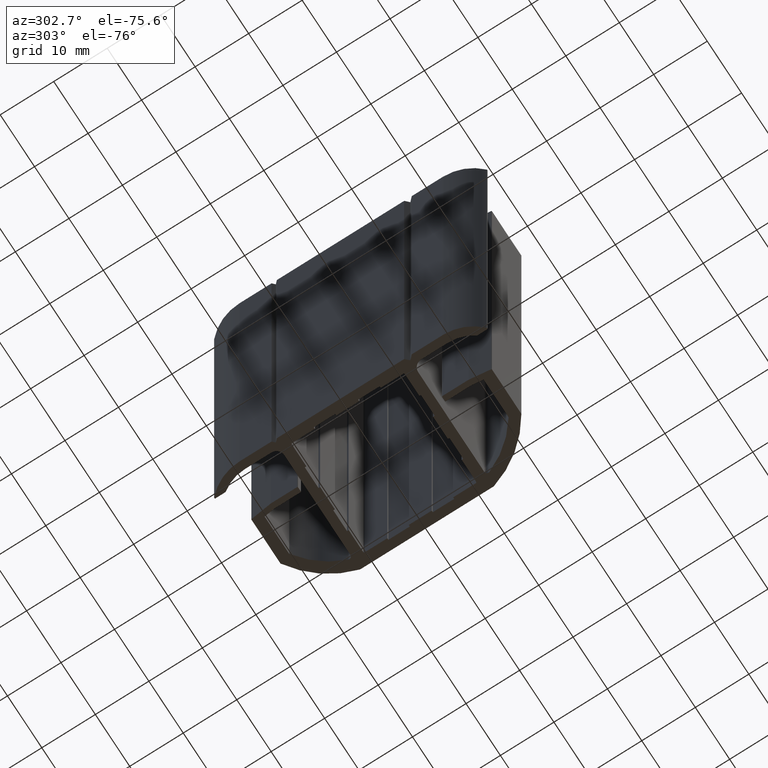
[diagram: clean part render]
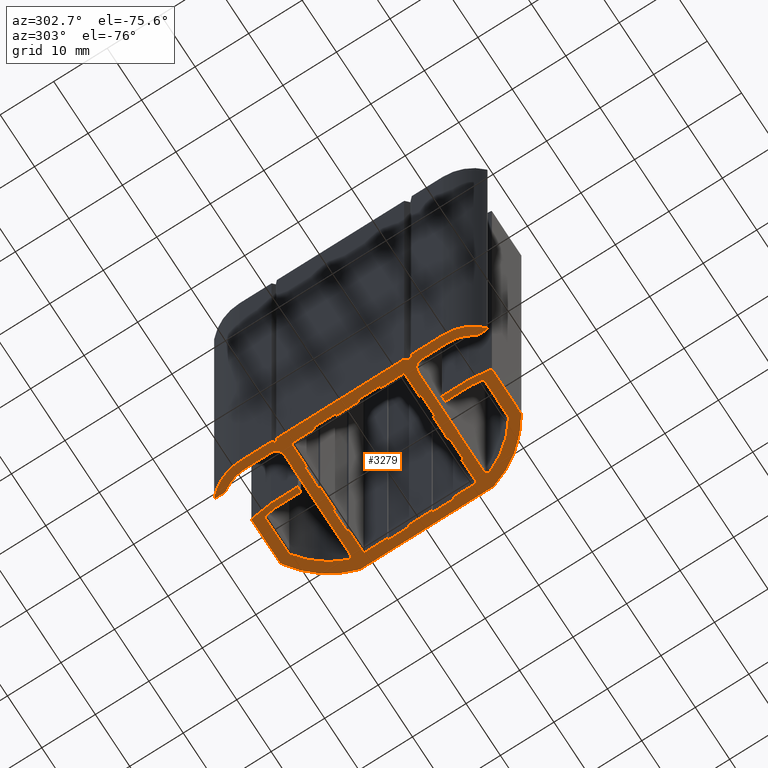
[diagram: same view with one face highlighted and labeled with its STEP entity id]
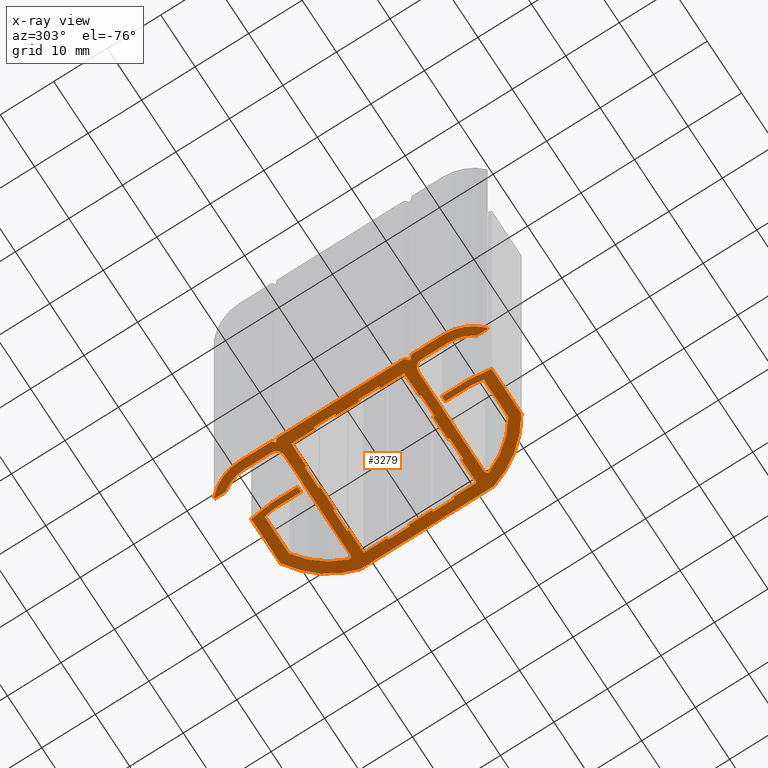
[diagram: x-ray of the same camera — body ghosted, the highlighted face saturated]
A machine part, auxiliary view. The second image highlights one B-rep face of the part: STEP entity #3279.
The next image is the same camera in x-ray: the body ghosted, the highlighted face saturated — about 0% of this face is hidden behind the body in this view.
In plain terms, the highlighted planar face has unit normal (0, 0, 1).
Its self-contained STEP definition (entity closure, byte-faithful):
#7=CARTESIAN_POINT('',(15.508481817630354,-22.484562779926733,-100.0));
#8=VERTEX_POINT('',#7);
#9=CARTESIAN_POINT('',(23.049999999999955,-12.500000000000284,-100.0));
#10=VERTEX_POINT('',#9);
#11=CARTESIAN_POINT('',(6.049999999999955,-7.500000000000284,-100.0));
#12=DIRECTION('',(0.0,0.0,1.0));
#13=DIRECTION('',(1.0,0.0,0.0));
#14=AXIS2_PLACEMENT_3D('',#11,#12,#13);
#15=CIRCLE('',#14,17.720045146669349);
#16=EDGE_CURVE('',#8,#10,#15,.T.);
#49=CARTESIAN_POINT('',(23.049999999999955,12.499999999999545,-100.0));
#50=VERTEX_POINT('',#49);
#51=CARTESIAN_POINT('',(23.049999999999955,-12.500000000000284,-100.0));
#52=DIRECTION('',(0.0,1.0,0.0));
#53=VECTOR('',#52,25.000000000000085);
#54=LINE('',#51,#53);
#55=EDGE_CURVE('',#10,#50,#54,.T.);
#80=CARTESIAN_POINT('',(15.508481817630354,22.484562779924460,-100.0));
#81=VERTEX_POINT('',#80);
#82=CARTESIAN_POINT('',(6.049999999999955,7.499999999999801,-100.0));
#83=DIRECTION('',(0.0,0.0,1.0));
#84=DIRECTION('',(1.0,0.0,0.0));
#85=AXIS2_PLACEMENT_3D('',#82,#83,#84);
#86=CIRCLE('',#85,17.720045146669349);
#87=EDGE_CURVE('',#50,#81,#86,.T.);
#113=CARTESIAN_POINT('',(15.455104516729989,22.499999999999801,-100.0));
#114=VERTEX_POINT('',#113);
#115=CARTESIAN_POINT('',(15.455104516729989,22.399999999999807,-100.0));
#116=DIRECTION('',(0.0,0.0,1.0));
#117=DIRECTION('',(1.0,0.0,0.0));
#118=AXIS2_PLACEMENT_3D('',#115,#116,#117);
#119=CIRCLE('',#118,0.100000000000000);
#120=EDGE_CURVE('',#81,#114,#119,.T.);
#146=CARTESIAN_POINT('',(7.038278221853943,22.499999999999801,-100.0));
#147=VERTEX_POINT('',#146);
#148=CARTESIAN_POINT('',(15.455104516729989,22.499999999999801,-100.0));
#149=DIRECTION('',(-1.0,0.0,0.0));
#150=VECTOR('',#149,8.416826294876046);
#151=LINE('',#148,#150);
#152=EDGE_CURVE('',#114,#147,#151,.T.);
#177=CARTESIAN_POINT('',(6.939050434181809,22.412403473458710,-100.0));
#178=VERTEX_POINT('',#177);
#179=CARTESIAN_POINT('',(7.038278221853943,22.399999999999807,-100.0));
#180=DIRECTION('',(0.0,0.0,1.0));
#181=DIRECTION('',(1.0,0.0,0.0));
#182=AXIS2_PLACEMENT_3D('',#179,#180,#181);
#183=CIRCLE('',#182,0.100000000000000);
#184=EDGE_CURVE('',#147,#178,#183,.T.);
#210=CARTESIAN_POINT('',(6.449999999999818,18.500000000000909,-100.0));
#211=VERTEX_POINT('',#210);
#212=CARTESIAN_POINT('',(6.939050434181809,22.412403473458710,-100.0));
#213=DIRECTION('',(-0.124034734589150,-0.992277876713675,0.0));
#214=VECTOR('',#213,3.942850652294385);
#215=LINE('',#212,#214);
#216=EDGE_CURVE('',#178,#211,#215,.T.);
#241=CARTESIAN_POINT('',(6.450000000000955,13.599999999999795,-100.0));
#242=VERTEX_POINT('',#241);
#243=CARTESIAN_POINT('',(6.449999999999818,18.500000000000909,-100.0));
#244=DIRECTION('',(0.0,-1.0,0.0));
#245=VECTOR('',#244,4.900000000001114);
#246=LINE('',#243,#245);
#247=EDGE_CURVE('',#211,#242,#246,.T.);
#272=CARTESIAN_POINT('',(6.550000000000864,13.499999999999801,-100.0));
#273=VERTEX_POINT('',#272);
#274=CARTESIAN_POINT('',(6.550000000000864,13.599999999999795,-100.0));
#275=DIRECTION('',(0.0,0.0,1.0));
#276=DIRECTION('',(1.0,0.0,0.0));
#277=AXIS2_PLACEMENT_3D('',#274,#275,#276);
#278=CIRCLE('',#277,0.100000000000000);
#279=EDGE_CURVE('',#242,#273,#278,.T.);
#305=CARTESIAN_POINT('',(7.349999999999909,13.499999999999801,-100.0));
#306=VERTEX_POINT('',#305);
#307=CARTESIAN_POINT('',(6.550000000000864,13.499999999999801,-100.0));
#308=DIRECTION('',(1.0,0.0,0.0));
#309=VECTOR('',#308,0.799999999999045);
#310=LINE('',#307,#309);
#311=EDGE_CURVE('',#273,#306,#310,.T.);
#336=CARTESIAN_POINT('',(7.449999999999818,13.599999999999795,-100.0));
#337=VERTEX_POINT('',#336);
#338=CARTESIAN_POINT('',(7.349999999999909,13.599999999999795,-100.0));
#339=DIRECTION('',(0.0,0.0,1.0));
#340=DIRECTION('',(1.0,0.0,0.0));
#341=AXIS2_PLACEMENT_3D('',#338,#339,#340);
#342=CIRCLE('',#341,0.100000000000000);
#343=EDGE_CURVE('',#306,#337,#342,.T.);
#369=CARTESIAN_POINT('',(7.449999999999818,18.437742251701508,-100.0));
#370=VERTEX_POINT('',#369);
#371=CARTESIAN_POINT('',(7.449999999999818,13.599999999999795,-100.0));
#372=DIRECTION('',(0.0,1.0,0.0));
#373=VECTOR('',#372,4.837742251701712);
#374=LINE('',#371,#373);
#375=EDGE_CURVE('',#337,#370,#374,.T.);
#400=CARTESIAN_POINT('',(7.696832652719422,20.412403473458738,-100.0));
#401=VERTEX_POINT('',#400);
#402=CARTESIAN_POINT('',(7.449999999999818,18.437742251701508,-100.0));
#403=DIRECTION('',(0.124034734589411,0.992277876713642,0.0));
#404=VECTOR('',#403,1.990028466922136);
#405=LINE('',#402,#404);
#406=EDGE_CURVE('',#370,#401,#405,.T.);
#431=CARTESIAN_POINT('',(7.796060440390875,20.499999999999801,-100.0));
#432=VERTEX_POINT('',#431);
#433=CARTESIAN_POINT('',(7.796060440390875,20.399999999999807,-100.0));
#434=DIRECTION('',(0.0,0.0,-1.0));
#435=DIRECTION('',(1.0,0.0,0.0));
#436=AXIS2_PLACEMENT_3D('',#433,#434,#435);
#437=CIRCLE('',#436,0.100000000000000);
#438=EDGE_CURVE('',#401,#432,#437,.T.);
#464=CARTESIAN_POINT('',(14.857713118854008,20.499999999999801,-100.0));
#465=VERTEX_POINT('',#464);
#466=CARTESIAN_POINT('',(7.796060440390875,20.499999999999801,-100.0));
#467=DIRECTION('',(1.0,0.0,0.0));
#468=VECTOR('',#467,7.061652678463133);
#469=LINE('',#466,#468);
#470=EDGE_CURVE('',#432,#465,#469,.T.);
#495=CARTESIAN_POINT('',(14.914100363809666,20.482586188954230,-100.0));
#496=VERTEX_POINT('',#495);
#497=CARTESIAN_POINT('',(14.857713118854008,20.399999999999807,-100.0));
#498=DIRECTION('',(0.0,0.0,-1.0));
#499=DIRECTION('',(1.0,0.0,0.0));
#500=AXIS2_PLACEMENT_3D('',#497,#498,#499);
#501=CIRCLE('',#500,0.100000000000000);
#502=EDGE_CURVE('',#465,#496,#501,.T.);
#528=CARTESIAN_POINT('',(20.707750939953030,13.180682775477777,-100.0));
#529=VERTEX_POINT('',#528);
#530=CARTESIAN_POINT('',(6.049999999999955,7.499999999999801,-100.0));
#531=DIRECTION('',(0.0,0.0,-1.0));
#532=DIRECTION('',(1.0,0.0,0.0));
#533=AXIS2_PLACEMENT_3D('',#530,#531,#532);
#534=CIRCLE('',#533,15.720045146669349);
#535=EDGE_CURVE('',#496,#529,#534,.T.);
#561=CARTESIAN_POINT('',(20.241538826590840,12.499999999999801,-100.0));
#562=VERTEX_POINT('',#561);
#563=CARTESIAN_POINT('',(20.241538826590840,12.999999999999801,-100.0));
#564=DIRECTION('',(0.0,0.0,-1.0));
#565=DIRECTION('',(1.0,0.0,0.0));
#566=AXIS2_PLACEMENT_3D('',#563,#564,#565);
#567=CIRCLE('',#566,0.500000000000000);
#568=EDGE_CURVE('',#529,#562,#567,.T.);
#594=CARTESIAN_POINT('',(1.049999999999955,12.499999999999716,-100.0));
#595=VERTEX_POINT('',#594);
#596=CARTESIAN_POINT('',(20.241538826590840,12.499999999999801,-100.0));
#597=DIRECTION('',(-1.0,0.0,0.0));
#598=VECTOR('',#597,19.191538826590886);
#599=LINE('',#596,#598);
#600=EDGE_CURVE('',#562,#595,#599,.T.);
#625=CARTESIAN_POINT('',(-0.450000000000045,13.999999999999716,-100.0));
#626=VERTEX_POINT('',#625);
#627=CARTESIAN_POINT('',(1.049999999999955,13.999999999999716,-100.0));
#628=DIRECTION('',(0.0,0.0,-1.0));
#629=DIRECTION('',(1.0,0.0,0.0));
#630=AXIS2_PLACEMENT_3D('',#627,#628,#629);
#631=CIRCLE('',#630,1.500000000000000);
#632=EDGE_CURVE('',#595,#626,#631,.T.);
#658=CARTESIAN_POINT('',(-0.450000000000045,18.999999999999801,-100.0));
#659=VERTEX_POINT('',#658);
#660=CARTESIAN_POINT('',(-0.450000000000045,13.999999999999716,-100.0));
#661=DIRECTION('',(0.0,1.0,0.0));
#662=VECTOR('',#661,5.000000000000085);
#663=LINE('',#660,#662);
#664=EDGE_CURVE('',#626,#659,#663,.T.);
#689=CARTESIAN_POINT('',(1.030263157894524,23.473563272359939,-100.0));
#690=VERTEX_POINT('',#689);
#691=CARTESIAN_POINT('',(7.049999999999955,18.999999999999801,-100.0));
#692=DIRECTION('',(0.0,0.0,-1.0));
#693=DIRECTION('',(1.0,0.0,0.0));
#694=AXIS2_PLACEMENT_3D('',#691,#692,#693);
#695=CIRCLE('',#694,7.499999999999992);
#696=EDGE_CURVE('',#659,#690,#695,.T.);
#722=CARTESIAN_POINT('',(1.049999999999955,23.533210782658102,-100.0));
#723=VERTEX_POINT('',#722);
#724=CARTESIAN_POINT('',(0.949999999999818,23.533210782658102,-100.0));
#725=DIRECTION('',(0.0,0.0,1.0));
#726=DIRECTION('',(1.0,0.0,0.0));
#727=AXIS2_PLACEMENT_3D('',#724,#725,#726);
#728=CIRCLE('',#727,0.100000000000000);
#729=EDGE_CURVE('',#690,#723,#728,.T.);
#755=CARTESIAN_POINT('',(1.049999999999727,25.399999999999693,-100.0));
#756=VERTEX_POINT('',#755);
#757=CARTESIAN_POINT('',(1.049999999999955,23.533210782658102,-100.0));
#758=DIRECTION('',(0.0,1.0,0.0));
#759=VECTOR('',#758,1.866789217341591);
#760=LINE('',#757,#759);
#761=EDGE_CURVE('',#723,#756,#760,.T.);
#786=CARTESIAN_POINT('',(0.949999999999818,25.499999999999801,-100.0));
#787=VERTEX_POINT('',#786);
#788=CARTESIAN_POINT('',(0.949999999999818,25.399999999999693,-100.0));
#789=DIRECTION('',(0.0,0.0,1.0));
#790=DIRECTION('',(1.0,0.0,0.0));
#791=AXIS2_PLACEMENT_3D('',#788,#789,#790);
#792=CIRCLE('',#791,0.100000000000000);
#793=EDGE_CURVE('',#756,#787,#792,.T.);
#819=CARTESIAN_POINT('',(0.865341561573814,25.499999999999687,-100.0));
#820=VERTEX_POINT('',#819);
#821=CARTESIAN_POINT('',(0.949999999999818,25.499999999999801,-100.0));
#822=DIRECTION('',(-1.0,0.0,0.0));
#823=VECTOR('',#822,0.084658438426004);
#824=LINE('',#821,#823);
#825=EDGE_CURVE('',#787,#820,#824,.T.);
#850=CARTESIAN_POINT('',(0.795851017323002,25.471910112360860,-100.0));
#851=VERTEX_POINT('',#850);
#852=CARTESIAN_POINT('',(0.865341561573814,25.399999999999693,-100.0));
#853=DIRECTION('',(0.0,0.0,1.0));
#854=DIRECTION('',(1.0,0.0,0.0));
#855=AXIS2_PLACEMENT_3D('',#852,#853,#854);
#856=CIRCLE('',#855,0.100000000000000);
#857=EDGE_CURVE('',#820,#851,#856,.T.);
#883=CARTESIAN_POINT('',(-1.950000000000046,18.999999999999801,-100.0));
#884=VERTEX_POINT('',#883);
#885=CARTESIAN_POINT('',(7.049999999999955,18.999999999999801,-100.0));
#886=DIRECTION('',(0.0,0.0,1.0));
#887=DIRECTION('',(1.0,0.0,0.0));
#888=AXIS2_PLACEMENT_3D('',#885,#886,#887);
#889=CIRCLE('',#888,8.999999999999991);
#890=EDGE_CURVE('',#851,#884,#889,.T.);
#916=CARTESIAN_POINT('',(-1.950000000000046,12.999999999999716,-100.0));
#917=VERTEX_POINT('',#916);
#918=CARTESIAN_POINT('',(-1.950000000000046,18.999999999999801,-100.0));
#919=DIRECTION('',(0.0,-1.0,0.0));
#920=VECTOR('',#919,6.000000000000085);
#921=LINE('',#918,#920);
#922=EDGE_CURVE('',#884,#917,#921,.T.);
#947=CARTESIAN_POINT('',(-1.450000000000046,12.499999999999801,-100.0));
#948=VERTEX_POINT('',#947);
#949=CARTESIAN_POINT('',(-1.950000000000046,12.999999999999716,-100.0));
#950=DIRECTION('',(0.707106781186608,-0.707106781186487,0.0));
#951=VECTOR('',#950,0.707106781186487);
#952=LINE('',#949,#951);
#953=EDGE_CURVE('',#917,#948,#952,.T.);
#978=CARTESIAN_POINT('',(-1.950000000000046,11.999999999999716,-100.0));
#979=VERTEX_POINT('',#978);
#980=CARTESIAN_POINT('',(-1.450000000000046,12.499999999999801,-100.0));
#981=DIRECTION('',(-0.707106781186487,-0.707106781186608,0.0));
#982=VECTOR('',#981,0.707106781186608);
#983=LINE('',#980,#982);
#984=EDGE_CURVE('',#948,#979,#983,.T.);
#1009=CARTESIAN_POINT('',(-1.950000000000046,-11.792893218813703,-100.0));
#1010=VERTEX_POINT('',#1009);
#1011=CARTESIAN_POINT('',(-1.950000000000046,11.999999999999716,-100.0));
#1012=DIRECTION('',(0.0,-1.0,0.0));
#1013=VECTOR('',#1012,23.792893218813418);
#1014=LINE('',#1011,#1013);
#1015=EDGE_CURVE('',#979,#1010,#1014,.T.);
#1040=CARTESIAN_POINT('',(-1.242893218813151,-12.500000000000284,-100.0));
#1041=VERTEX_POINT('',#1040);
#1042=CARTESIAN_POINT('',(-1.950000000000046,-11.792893218813703,-100.0));
#1043=DIRECTION('',(0.707106781186704,-0.707106781186391,0.0));
#1044=VECTOR('',#1043,1.000000000000269);
#1045=LINE('',#1042,#1044);
#1046=EDGE_CURVE('',#1010,#1041,#1045,.T.);
#1071=CARTESIAN_POINT('',(-1.950000000000046,-13.207106781186781,-100.0));
#1072=VERTEX_POINT('',#1071);
#1073=CARTESIAN_POINT('',(-1.242893218813151,-12.500000000000284,-100.0));
#1074=DIRECTION('',(-0.707106781186747,-0.707106781186349,0.0));
#1075=VECTOR('',#1074,1.000000000000209);
#1076=LINE('',#1073,#1075);
#1077=EDGE_CURVE('',#1041,#1072,#1076,.T.);
#1102=CARTESIAN_POINT('',(-1.950000000000046,-19.000000000000284,-100.0));
#1103=VERTEX_POINT('',#1102);
#1104=CARTESIAN_POINT('',(-1.950000000000046,-13.207106781186781,-100.0));
#1105=DIRECTION('',(0.0,-1.0,0.0));
#1106=VECTOR('',#1105,5.792893218813504);
#1107=LINE('',#1104,#1106);
#1108=EDGE_CURVE('',#1072,#1103,#1107,.T.);
#1133=CARTESIAN_POINT('',(0.795851017321866,-25.471910112359865,-100.0));
#1134=VERTEX_POINT('',#1133);
#1135=CARTESIAN_POINT('',(7.049999999999955,-19.000000000000284,-100.0));
#1136=DIRECTION('',(0.0,0.0,1.0));
#1137=DIRECTION('',(1.0,0.0,0.0));
#1138=AXIS2_PLACEMENT_3D('',#1135,#1136,#1137);
#1139=CIRCLE('',#1138,8.999999999999991);
#1140=EDGE_CURVE('',#1103,#1134,#1139,.T.);
#1166=CARTESIAN_POINT('',(0.865341561573814,-25.500000000000284,-100.0));
#1167=VERTEX_POINT('',#1166);
#1168=CARTESIAN_POINT('',(0.865341561573814,-25.400000000000290,-100.0));
#1169=DIRECTION('',(0.0,0.0,1.0));
#1170=DIRECTION('',(1.0,0.0,0.0));
#1171=AXIS2_PLACEMENT_3D('',#1168,#1169,#1170);
#1172=CIRCLE('',#1171,0.100000000000000);
#1173=EDGE_CURVE('',#1134,#1167,#1172,.T.);
#1199=CARTESIAN_POINT('',(0.949999999999818,-25.500000000000284,-100.0));
#1200=VERTEX_POINT('',#1199);
#1201=CARTESIAN_POINT('',(0.865341561573814,-25.500000000000284,-100.0));
#1202=DIRECTION('',(1.0,0.0,0.0));
#1203=VECTOR('',#1202,0.084658438426004);
#1204=LINE('',#1201,#1203);
#1205=EDGE_CURVE('',#1167,#1200,#1204,.T.);
#1230=CARTESIAN_POINT('',(1.049999999999955,-25.400000000000290,-100.0));
#1231=VERTEX_POINT('',#1230);
#1232=CARTESIAN_POINT('',(0.949999999999818,-25.400000000000290,-100.0));
#1233=DIRECTION('',(0.0,0.0,1.0));
#1234=DIRECTION('',(1.0,0.0,0.0));
#1235=AXIS2_PLACEMENT_3D('',#1232,#1233,#1234);
#1236=CIRCLE('',#1235,0.100000000000000);
#1237=EDGE_CURVE('',#1200,#1231,#1236,.T.);
#1263=CARTESIAN_POINT('',(1.049999999999955,-23.566180022732595,-100.0));
#1264=VERTEX_POINT('',#1263);
#1265=CARTESIAN_POINT('',(1.049999999999955,-25.400000000000290,-100.0));
#1266=DIRECTION('',(0.0,1.0,0.0));
#1267=VECTOR('',#1266,1.833819977267694);
#1268=LINE('',#1265,#1267);
#1269=EDGE_CURVE('',#1231,#1264,#1268,.T.);
#1294=CARTESIAN_POINT('',(1.011038961039503,-23.447577944220939,-100.0));
#1295=VERTEX_POINT('',#1294);
#1296=CARTESIAN_POINT('',(0.849999999999909,-23.566180022732595,-100.0));
#1297=DIRECTION('',(0.0,0.0,1.0));
#1298=DIRECTION('',(1.0,0.0,0.0));
#1299=AXIS2_PLACEMENT_3D('',#1296,#1297,#1298);
#1300=CIRCLE('',#1299,0.200000000000000);
#1301=EDGE_CURVE('',#1264,#1295,#1300,.T.);
#1327=CARTESIAN_POINT('',(-0.450000000000045,-19.000000000000284,-100.0));
#1328=VERTEX_POINT('',#1327);
#1329=CARTESIAN_POINT('',(7.049999999999955,-19.000000000000284,-100.0));
#1330=DIRECTION('',(0.0,0.0,-1.0));
#1331=DIRECTION('',(1.0,0.0,0.0));
#1332=AXIS2_PLACEMENT_3D('',#1329,#1330,#1331);
#1333=CIRCLE('',#1332,7.499999999999992);
#1334=EDGE_CURVE('',#1295,#1328,#1333,.T.);
#1360=CARTESIAN_POINT('',(-0.450000000000045,-14.000000000000284,-100.0));
#1361=VERTEX_POINT('',#1360);
#1362=CARTESIAN_POINT('',(-0.450000000000045,-19.000000000000284,-100.0));
#1363=DIRECTION('',(0.0,1.0,0.0));
#1364=VECTOR('',#1363,5.0);
#1365=LINE('',#1362,#1364);
#1366=EDGE_CURVE('',#1328,#1361,#1365,.T.);
#1391=CARTESIAN_POINT('',(1.049999999999955,-12.500000000000284,-100.0));
#1392=VERTEX_POINT('',#1391);
#1393=CARTESIAN_POINT('',(1.049999999999955,-14.000000000000284,-100.0));
#1394=DIRECTION('',(0.0,0.0,-1.0));
#1395=DIRECTION('',(1.0,0.0,0.0));
#1396=AXIS2_PLACEMENT_3D('',#1393,#1394,#1395);
#1397=CIRCLE('',#1396,1.500000000000000);
#1398=EDGE_CURVE('',#1361,#1392,#1397,.T.);
#1424=CARTESIAN_POINT('',(20.241538826590840,-12.500000000000284,-100.0));
#1425=VERTEX_POINT('',#1424);
#1426=CARTESIAN_POINT('',(1.049999999999955,-12.500000000000284,-100.0));
#1427=DIRECTION('',(1.0,0.0,0.0));
#1428=VECTOR('',#1427,19.191538826590886);
#1429=LINE('',#1426,#1428);
#1430=EDGE_CURVE('',#1392,#1425,#1429,.T.);
#1455=CARTESIAN_POINT('',(20.707750939953257,-13.180682775478999,-100.0));
#1456=VERTEX_POINT('',#1455);
#1457=CARTESIAN_POINT('',(20.241538826590840,-13.000000000000284,-100.0));
#1458=DIRECTION('',(0.0,0.0,-1.0));
#1459=DIRECTION('',(1.0,0.0,0.0));
#1460=AXIS2_PLACEMENT_3D('',#1457,#1458,#1459);
#1461=CIRCLE('',#1460,0.500000000000000);
#1462=EDGE_CURVE('',#1425,#1456,#1461,.T.);
#1488=CARTESIAN_POINT('',(14.914100363808529,-20.482586188957299,-100.0));
#1489=VERTEX_POINT('',#1488);
#1490=CARTESIAN_POINT('',(6.049999999999955,-7.500000000000284,-100.0));
#1491=DIRECTION('',(0.0,0.0,-1.0));
#1492=DIRECTION('',(1.0,0.0,0.0));
#1493=AXIS2_PLACEMENT_3D('',#1490,#1491,#1492);
#1494=CIRCLE('',#1493,15.720045146669349);
#1495=EDGE_CURVE('',#1456,#1489,#1494,.T.);
#1521=CARTESIAN_POINT('',(14.857713118854008,-20.500000000000284,-100.0));
#1522=VERTEX_POINT('',#1521);
#1523=CARTESIAN_POINT('',(14.857713118854008,-20.400000000000290,-100.0));
#1524=DIRECTION('',(0.0,0.0,-1.0));
#1525=DIRECTION('',(1.0,0.0,0.0));
#1526=AXIS2_PLACEMENT_3D('',#1523,#1524,#1525);
#1527=CIRCLE('',#1526,0.100000000000000);
#1528=EDGE_CURVE('',#1489,#1522,#1527,.T.);
#1554=CARTESIAN_POINT('',(7.696060440390966,-20.500000000000284,-100.0));
#1555=VERTEX_POINT('',#1554);
#1556=CARTESIAN_POINT('',(14.857713118854008,-20.500000000000284,-100.0));
#1557=DIRECTION('',(-1.0,0.0,0.0));
#1558=VECTOR('',#1557,7.161652678463042);
#1559=LINE('',#1556,#1558);
#1560=EDGE_CURVE('',#1522,#1555,#1559,.T.);
#1585=CARTESIAN_POINT('',(7.596832652719968,-20.412403473459193,-100.0));
#1586=VERTEX_POINT('',#1585);
#1587=CARTESIAN_POINT('',(7.696060440390966,-20.400000000000290,-100.0));
#1588=DIRECTION('',(0.0,0.0,-1.0));
#1589=DIRECTION('',(1.0,0.0,0.0));
#1590=AXIS2_PLACEMENT_3D('',#1587,#1588,#1589);
#1591=CIRCLE('',#1590,0.100000000000000);
#1592=EDGE_CURVE('',#1555,#1586,#1591,.T.);
#1618=CARTESIAN_POINT('',(7.349999999999909,-18.437742251701991,-100.0));
#1619=VERTEX_POINT('',#1618);
#1620=CARTESIAN_POINT('',(7.596832652719968,-20.412403473459193,-100.0));
#1621=DIRECTION('',(-0.124034734589411,0.992277876713642,0.0));
#1622=VECTOR('',#1621,1.990028466922136);
#1623=LINE('',#1620,#1622);
#1624=EDGE_CURVE('',#1586,#1619,#1623,.T.);
#1649=CARTESIAN_POINT('',(7.349999999999909,-13.600000000000307,-100.0));
#1650=VERTEX_POINT('',#1649);
#1651=CARTESIAN_POINT('',(7.349999999999909,-18.437742251701991,-100.0));
#1652=DIRECTION('',(0.0,1.0,0.0));
#1653=VECTOR('',#1652,4.837742251701684);
#1654=LINE('',#1651,#1653);
#1655=EDGE_CURVE('',#1619,#1650,#1654,.T.);
#1680=CARTESIAN_POINT('',(7.250000000000000,-13.500000000000284,-100.0));
#1681=VERTEX_POINT('',#1680);
#1682=CARTESIAN_POINT('',(7.250000000000000,-13.600000000000307,-100.0));
#1683=DIRECTION('',(0.0,0.0,1.0));
#1684=DIRECTION('',(1.0,0.0,0.0));
#1685=AXIS2_PLACEMENT_3D('',#1682,#1683,#1684);
#1686=CIRCLE('',#1685,0.100000000000000);
#1687=EDGE_CURVE('',#1650,#1681,#1686,.T.);
#1713=CARTESIAN_POINT('',(6.449999999999818,-13.500000000000313,-100.0));
#1714=VERTEX_POINT('',#1713);
#1715=CARTESIAN_POINT('',(7.250000000000000,-13.500000000000284,-100.0));
#1716=DIRECTION('',(-1.0,0.0,0.0));
#1717=VECTOR('',#1716,0.800000000000182);
#1718=LINE('',#1715,#1717);
#1719=EDGE_CURVE('',#1681,#1714,#1718,.T.);
#1744=CARTESIAN_POINT('',(6.349999999999909,-13.600000000000307,-100.0));
#1745=VERTEX_POINT('',#1744);
#1746=CARTESIAN_POINT('',(6.449999999999818,-13.600000000000307,-100.0));
#1747=DIRECTION('',(0.0,0.0,1.0));
#1748=DIRECTION('',(1.0,0.0,0.0));
#1749=AXIS2_PLACEMENT_3D('',#1746,#1747,#1748);
#1750=CIRCLE('',#1749,0.100000000000000);
#1751=EDGE_CURVE('',#1714,#1745,#1750,.T.);
#1777=CARTESIAN_POINT('',(6.349999999999909,-18.500000000001393,-100.0));
#1778=VERTEX_POINT('',#1777);
#1779=CARTESIAN_POINT('',(6.349999999999909,-13.600000000000307,-100.0));
#1780=DIRECTION('',(0.0,-1.0,0.0));
#1781=VECTOR('',#1780,4.900000000001086);
#1782=LINE('',#1779,#1781);
#1783=EDGE_CURVE('',#1745,#1778,#1782,.T.);
#1808=CARTESIAN_POINT('',(6.839050434182354,-22.412403473459221,-100.0));
#1809=VERTEX_POINT('',#1808);
#1810=CARTESIAN_POINT('',(6.349999999999909,-18.500000000001393,-100.0));
#1811=DIRECTION('',(0.124034734589150,-0.992277876713675,0.0));
#1812=VECTOR('',#1811,3.942850652294385);
#1813=LINE('',#1810,#1812);
#1814=EDGE_CURVE('',#1778,#1809,#1813,.T.);
#1839=CARTESIAN_POINT('',(6.938278221853807,-22.500000000000284,-100.0));
#1840=VERTEX_POINT('',#1839);
#1841=CARTESIAN_POINT('',(6.938278221853807,-22.400000000000290,-100.0));
#1842=DIRECTION('',(0.0,0.0,1.0));
#1843=DIRECTION('',(1.0,0.0,0.0));
#1844=AXIS2_PLACEMENT_3D('',#1841,#1842,#1843);
#1845=CIRCLE('',#1844,0.100000000000000);
#1846=EDGE_CURVE('',#1809,#1840,#1845,.T.);
#1872=CARTESIAN_POINT('',(15.455104516729989,-22.500000000000284,-100.0));
#1873=VERTEX_POINT('',#1872);
#1874=CARTESIAN_POINT('',(6.938278221853807,-22.500000000000284,-100.0));
#1875=DIRECTION('',(1.0,0.0,0.0));
#1876=VECTOR('',#1875,8.516826294876182);
#1877=LINE('',#1874,#1876);
#1878=EDGE_CURVE('',#1840,#1873,#1877,.T.);
#1903=CARTESIAN_POINT('',(15.455104516729989,-22.400000000000290,-100.0));
#1904=DIRECTION('',(0.0,0.0,1.0));
#1905=DIRECTION('',(1.0,0.0,0.0));
#1906=AXIS2_PLACEMENT_3D('',#1903,#1904,#1905);
#1907=CIRCLE('',#1906,0.100000000000000);
#1908=EDGE_CURVE('',#1873,#8,#1907,.T.);
#1927=CARTESIAN_POINT('',(-0.300000000001091,-6.150000000000006,-100.0));
#1928=VERTEX_POINT('',#1927);
#1929=CARTESIAN_POINT('',(-0.300000000001091,-2.149999999999892,-100.0));
#1930=VERTEX_POINT('',#1929);
#1931=CARTESIAN_POINT('',(-0.300000000001091,-6.150000000000006,-100.0));
#1932=DIRECTION('',(0.0,1.0,0.0));
#1933=VECTOR('',#1932,4.000000000000114);
#1934=LINE('',#1931,#1933);
#1935=EDGE_CURVE('',#1928,#1930,#1934,.T.);
#1967=CARTESIAN_POINT('',(0.0,-2.149999999999892,-100.0));
#1968=VERTEX_POINT('',#1967);
#1969=CARTESIAN_POINT('',(-0.300000000001091,-2.149999999999892,-100.0));
#1970=DIRECTION('',(1.0,0.0,0.0));
#1971=VECTOR('',#1970,0.300000000001091);
#1972=LINE('',#1969,#1971);
#1973=EDGE_CURVE('',#1930,#1968,#1972,.T.);
#1998=CARTESIAN_POINT('',(0.0,2.149999999999892,-100.0));
#1999=VERTEX_POINT('',#1998);
#2000=CARTESIAN_POINT('',(0.0,-2.149999999999892,-100.0));
#2001=DIRECTION('',(0.0,1.0,0.0));
#2002=VECTOR('',#2001,4.299999999999784);
#2003=LINE('',#2000,#2002);
#2004=EDGE_CURVE('',#1968,#1999,#2003,.T.);
#2029=CARTESIAN_POINT('',(-0.300000000001091,2.149999999999892,-100.0));
#2030=VERTEX_POINT('',#2029);
#2031=CARTESIAN_POINT('',(0.0,2.149999999999892,-100.0));
#2032=DIRECTION('',(-1.0,0.0,0.0));
#2033=VECTOR('',#2032,0.300000000001091);
#2034=LINE('',#2031,#2033);
#2035=EDGE_CURVE('',#1999,#2030,#2034,.T.);
#2060=CARTESIAN_POINT('',(-0.300000000001091,6.149999999999892,-100.0));
#2061=VERTEX_POINT('',#2060);
#2062=CARTESIAN_POINT('',(-0.300000000001091,2.149999999999892,-100.0));
#2063=DIRECTION('',(0.0,1.0,0.0));
#2064=VECTOR('',#2063,4.0);
#2065=LINE('',#2062,#2064);
#2066=EDGE_CURVE('',#2030,#2061,#2065,.T.);
#2091=CARTESIAN_POINT('',(0.0,6.149999999999892,-100.0));
#2092=VERTEX_POINT('',#2091);
#2093=CARTESIAN_POINT('',(-0.300000000001091,6.149999999999892,-100.0));
#2094=DIRECTION('',(1.0,0.0,0.0));
#2095=VECTOR('',#2094,0.300000000001091);
#2096=LINE('',#2093,#2095);
#2097=EDGE_CURVE('',#2061,#2092,#2096,.T.);
#2122=CARTESIAN_POINT('',(-2.273737E-013,10.349999999999710,-100.0));
#2123=VERTEX_POINT('',#2122);
#2124=CARTESIAN_POINT('',(0.0,6.149999999999892,-100.0));
#2125=DIRECTION('',(0.0,1.0,0.0));
#2126=VECTOR('',#2125,4.199999999999903);
#2127=LINE('',#2124,#2126);
#2128=EDGE_CURVE('',#2092,#2123,#2127,.T.);
#2153=CARTESIAN_POINT('',(0.199999999999818,10.549999999999613,-100.0));
#2154=VERTEX_POINT('',#2153);
#2155=CARTESIAN_POINT('',(0.199999999999818,10.349999999999710,-100.0));
#2156=DIRECTION('',(0.0,0.0,-1.0));
#2157=DIRECTION('',(1.0,0.0,0.0));
#2158=AXIS2_PLACEMENT_3D('',#2155,#2156,#2157);
#2159=CIRCLE('',#2158,0.200000000000000);
#2160=EDGE_CURVE('',#2123,#2154,#2159,.T.);
#2186=CARTESIAN_POINT('',(4.399999999999864,10.549999999999613,-100.0));
#2187=VERTEX_POINT('',#2186);
#2188=CARTESIAN_POINT('',(0.199999999999818,10.549999999999613,-100.0));
#2189=DIRECTION('',(1.0,0.0,0.0));
#2190=VECTOR('',#2189,4.200000000000046);
#2191=LINE('',#2188,#2190);
#2192=EDGE_CURVE('',#2154,#2187,#2191,.T.);
#2217=CARTESIAN_POINT('',(4.399999999999864,10.849999999999795,-100.0));
#2218=VERTEX_POINT('',#2217);
#2219=CARTESIAN_POINT('',(4.399999999999864,10.549999999999613,-100.0));
#2220=DIRECTION('',(0.0,1.0,0.0));
#2221=VECTOR('',#2220,0.300000000000182);
#2222=LINE('',#2219,#2221);
#2223=EDGE_CURVE('',#2187,#2218,#2222,.T.);
#2248=CARTESIAN_POINT('',(8.399999999999864,10.849999999999795,-100.0));
#2249=VERTEX_POINT('',#2248);
#2250=CARTESIAN_POINT('',(4.399999999999864,10.849999999999795,-100.0));
#2251=DIRECTION('',(1.0,0.0,0.0));
#2252=VECTOR('',#2251,4.0);
#2253=LINE('',#2250,#2252);
#2254=EDGE_CURVE('',#2218,#2249,#2253,.T.);
#2279=CARTESIAN_POINT('',(8.399999999999864,10.549999999999613,-100.0));
#2280=VERTEX_POINT('',#2279);
#2281=CARTESIAN_POINT('',(8.399999999999864,10.849999999999795,-100.0));
#2282=DIRECTION('',(0.0,-1.0,0.0));
#2283=VECTOR('',#2282,0.300000000000182);
#2284=LINE('',#2281,#2283);
#2285=EDGE_CURVE('',#2249,#2280,#2284,.T.);
#2310=CARTESIAN_POINT('',(12.699999999999818,10.549999999999613,-100.0));
#2311=VERTEX_POINT('',#2310);
#2312=CARTESIAN_POINT('',(8.399999999999864,10.549999999999613,-100.0));
#2313=DIRECTION('',(1.0,0.0,0.0));
#2314=VECTOR('',#2313,4.299999999999955);
#2315=LINE('',#2312,#2314);
#2316=EDGE_CURVE('',#2280,#2311,#2315,.T.);
#2341=CARTESIAN_POINT('',(12.699999999999818,10.849999999999795,-100.0));
#2342=VERTEX_POINT('',#2341);
#2343=CARTESIAN_POINT('',(12.699999999999818,10.549999999999613,-100.0));
#2344=DIRECTION('',(0.0,1.0,0.0));
#2345=VECTOR('',#2344,0.300000000000182);
#2346=LINE('',#2343,#2345);
#2347=EDGE_CURVE('',#2311,#2342,#2346,.T.);
#2372=CARTESIAN_POINT('',(16.699999999999818,10.849999999999795,-100.0));
#2373=VERTEX_POINT('',#2372);
#2374=CARTESIAN_POINT('',(12.699999999999818,10.849999999999795,-100.0));
#2375=DIRECTION('',(1.0,0.0,0.0));
#2376=VECTOR('',#2375,4.0);
#2377=LINE('',#2374,#2376);
#2378=EDGE_CURVE('',#2342,#2373,#2377,.T.);
#2403=CARTESIAN_POINT('',(16.699999999999818,10.549999999999613,-100.0));
#2404=VERTEX_POINT('',#2403);
#2405=CARTESIAN_POINT('',(16.699999999999818,10.849999999999795,-100.0));
#2406=DIRECTION('',(0.0,-1.0,0.0));
#2407=VECTOR('',#2406,0.300000000000182);
#2408=LINE('',#2405,#2407);
#2409=EDGE_CURVE('',#2373,#2404,#2408,.T.);
#2434=CARTESIAN_POINT('',(20.899999999999864,10.549999999999699,-100.0));
#2435=VERTEX_POINT('',#2434);
#2436=CARTESIAN_POINT('',(16.699999999999818,10.549999999999613,-100.0));
#2437=DIRECTION('',(1.0,0.0,0.0));
#2438=VECTOR('',#2437,4.200000000000046);
#2439=LINE('',#2436,#2438);
#2440=EDGE_CURVE('',#2404,#2435,#2439,.T.);
#2465=CARTESIAN_POINT('',(21.099999999999909,10.349999999999795,-100.0));
#2466=VERTEX_POINT('',#2465);
#2467=CARTESIAN_POINT('',(20.899999999999864,10.349999999999710,-100.0));
#2468=DIRECTION('',(0.0,0.0,-1.0));
#2469=DIRECTION('',(1.0,0.0,0.0));
#2470=AXIS2_PLACEMENT_3D('',#2467,#2468,#2469);
#2471=CIRCLE('',#2470,0.200000000000000);
#2472=EDGE_CURVE('',#2435,#2466,#2471,.T.);
#2498=CARTESIAN_POINT('',(21.099999999999909,6.149999999999892,-100.0));
#2499=VERTEX_POINT('',#2498);
#2500=CARTESIAN_POINT('',(21.099999999999909,10.349999999999795,-100.0));
#2501=DIRECTION('',(0.0,-1.0,0.0));
#2502=VECTOR('',#2501,4.199999999999903);
#2503=LINE('',#2500,#2502);
#2504=EDGE_CURVE('',#2466,#2499,#2503,.T.);
#2529=CARTESIAN_POINT('',(21.399999999999864,6.149999999999892,-100.0));
#2530=VERTEX_POINT('',#2529);
#2531=CARTESIAN_POINT('',(21.099999999999909,6.149999999999892,-100.0));
#2532=DIRECTION('',(1.0,0.0,0.0));
#2533=VECTOR('',#2532,0.299999999999955);
#2534=LINE('',#2531,#2533);
#2535=EDGE_CURVE('',#2499,#2530,#2534,.T.);
#2560=CARTESIAN_POINT('',(21.399999999999864,2.149999999999892,-100.0));
#2561=VERTEX_POINT('',#2560);
#2562=CARTESIAN_POINT('',(21.399999999999864,6.149999999999892,-100.0));
#2563=DIRECTION('',(0.0,-1.0,0.0));
#2564=VECTOR('',#2563,4.0);
#2565=LINE('',#2562,#2564);
#2566=EDGE_CURVE('',#2530,#2561,#2565,.T.);
#2591=CARTESIAN_POINT('',(21.099999999999909,2.149999999999892,-100.0));
#2592=VERTEX_POINT('',#2591);
#2593=CARTESIAN_POINT('',(21.399999999999864,2.149999999999892,-100.0));
#2594=DIRECTION('',(-1.0,0.0,0.0));
#2595=VECTOR('',#2594,0.299999999999955);
#2596=LINE('',#2593,#2595);
#2597=EDGE_CURVE('',#2561,#2592,#2596,.T.);
#2622=CARTESIAN_POINT('',(21.099999999999909,-2.149999999999892,-100.0));
#2623=VERTEX_POINT('',#2622);
#2624=CARTESIAN_POINT('',(21.099999999999909,2.149999999999892,-100.0));
#2625=DIRECTION('',(0.0,-1.0,0.0));
#2626=VECTOR('',#2625,4.299999999999784);
#2627=LINE('',#2624,#2626);
#2628=EDGE_CURVE('',#2592,#2623,#2627,.T.);
#2653=CARTESIAN_POINT('',(21.399999999999864,-2.149999999999892,-100.0));
#2654=VERTEX_POINT('',#2653);
#2655=CARTESIAN_POINT('',(21.099999999999909,-2.149999999999892,-100.0));
#2656=DIRECTION('',(1.0,0.0,0.0));
#2657=VECTOR('',#2656,0.299999999999955);
#2658=LINE('',#2655,#2657);
#2659=EDGE_CURVE('',#2623,#2654,#2658,.T.);
#2684=CARTESIAN_POINT('',(21.399999999999864,-6.150000000000006,-100.0));
#2685=VERTEX_POINT('',#2684);
#2686=CARTESIAN_POINT('',(21.399999999999864,-2.149999999999892,-100.0));
#2687=DIRECTION('',(0.0,-1.0,0.0));
#2688=VECTOR('',#2687,4.000000000000114);
#2689=LINE('',#2686,#2688);
#2690=EDGE_CURVE('',#2654,#2685,#2689,.T.);
#2715=CARTESIAN_POINT('',(21.099999999999909,-6.150000000000006,-100.0));
#2716=VERTEX_POINT('',#2715);
#2717=CARTESIAN_POINT('',(21.399999999999864,-6.150000000000006,-100.0));
#2718=DIRECTION('',(-1.0,0.0,0.0));
#2719=VECTOR('',#2718,0.299999999999955);
#2720=LINE('',#2717,#2719);
#2721=EDGE_CURVE('',#2685,#2716,#2720,.T.);
#2746=CARTESIAN_POINT('',(21.099999999999909,-10.350000000000193,-100.0));
#2747=VERTEX_POINT('',#2746);
#2748=CARTESIAN_POINT('',(21.099999999999909,-6.150000000000006,-100.0));
#2749=DIRECTION('',(0.0,-1.0,0.0));
#2750=VECTOR('',#2749,4.200000000000188);
#2751=LINE('',#2748,#2750);
#2752=EDGE_CURVE('',#2716,#2747,#2751,.T.);
#2777=CARTESIAN_POINT('',(20.899999999999864,-10.550000000000097,-100.0));
#2778=VERTEX_POINT('',#2777);
#2779=CARTESIAN_POINT('',(20.899999999999864,-10.350000000000193,-100.0));
#2780=DIRECTION('',(0.0,0.0,-1.0));
#2781=DIRECTION('',(1.0,0.0,0.0));
#2782=AXIS2_PLACEMENT_3D('',#2779,#2780,#2781);
#2783=CIRCLE('',#2782,0.200000000000000);
#2784=EDGE_CURVE('',#2747,#2778,#2783,.T.);
#2810=CARTESIAN_POINT('',(16.699999999999818,-10.550000000000097,-100.0));
#2811=VERTEX_POINT('',#2810);
#2812=CARTESIAN_POINT('',(20.899999999999864,-10.550000000000097,-100.0));
#2813=DIRECTION('',(-1.0,0.0,0.0));
#2814=VECTOR('',#2813,4.200000000000046);
#2815=LINE('',#2812,#2814);
#2816=EDGE_CURVE('',#2778,#2811,#2815,.T.);
#2841=CARTESIAN_POINT('',(16.699999999999818,-10.850000000000307,-100.0));
#2842=VERTEX_POINT('',#2841);
#2843=CARTESIAN_POINT('',(16.699999999999818,-10.550000000000097,-100.0));
#2844=DIRECTION('',(0.0,-1.0,0.0));
#2845=VECTOR('',#2844,0.300000000000210);
#2846=LINE('',#2843,#2845);
#2847=EDGE_CURVE('',#2811,#2842,#2846,.T.);
#2872=CARTESIAN_POINT('',(12.699999999999818,-10.850000000000307,-100.0));
#2873=VERTEX_POINT('',#2872);
#2874=CARTESIAN_POINT('',(16.699999999999818,-10.850000000000307,-100.0));
#2875=DIRECTION('',(-1.0,0.0,0.0));
#2876=VECTOR('',#2875,4.0);
#2877=LINE('',#2874,#2876);
#2878=EDGE_CURVE('',#2842,#2873,#2877,.T.);
#2903=CARTESIAN_POINT('',(12.699999999999818,-10.550000000000097,-100.0));
#2904=VERTEX_POINT('',#2903);
#2905=CARTESIAN_POINT('',(12.699999999999818,-10.850000000000307,-100.0));
#2906=DIRECTION('',(0.0,1.0,0.0));
#2907=VECTOR('',#2906,0.300000000000210);
#2908=LINE('',#2905,#2907);
#2909=EDGE_CURVE('',#2873,#2904,#2908,.T.);
#2934=CARTESIAN_POINT('',(8.399999999999864,-10.550000000000097,-100.0));
#2935=VERTEX_POINT('',#2934);
#2936=CARTESIAN_POINT('',(12.699999999999818,-10.550000000000097,-100.0));
#2937=DIRECTION('',(-1.0,0.0,0.0));
#2938=VECTOR('',#2937,4.299999999999955);
#2939=LINE('',#2936,#2938);
#2940=EDGE_CURVE('',#2904,#2935,#2939,.T.);
#2965=CARTESIAN_POINT('',(8.399999999999864,-10.850000000000307,-100.0));
#2966=VERTEX_POINT('',#2965);
#2967=CARTESIAN_POINT('',(8.399999999999864,-10.550000000000097,-100.0));
#2968=DIRECTION('',(0.0,-1.0,0.0));
#2969=VECTOR('',#2968,0.300000000000210);
#2970=LINE('',#2967,#2969);
#2971=EDGE_CURVE('',#2935,#2966,#2970,.T.);
#2996=CARTESIAN_POINT('',(4.399999999999864,-10.850000000000307,-100.0));
#2997=VERTEX_POINT('',#2996);
#2998=CARTESIAN_POINT('',(8.399999999999864,-10.850000000000307,-100.0));
#2999=DIRECTION('',(-1.0,0.0,0.0));
#3000=VECTOR('',#2999,4.0);
#3001=LINE('',#2998,#3000);
#3002=EDGE_CURVE('',#2966,#2997,#3001,.T.);
#3027=CARTESIAN_POINT('',(4.399999999999864,-10.550000000000097,-100.0));
#3028=VERTEX_POINT('',#3027);
#3029=CARTESIAN_POINT('',(4.399999999999864,-10.850000000000307,-100.0));
#3030=DIRECTION('',(0.0,1.0,0.0));
#3031=VECTOR('',#3030,0.300000000000210);
#3032=LINE('',#3029,#3031);
#3033=EDGE_CURVE('',#2997,#3028,#3032,.T.);
#3058=CARTESIAN_POINT('',(0.199999999999818,-10.550000000000097,-100.0));
#3059=VERTEX_POINT('',#3058);
#3060=CARTESIAN_POINT('',(4.399999999999864,-10.550000000000097,-100.0));
#3061=DIRECTION('',(-1.0,0.0,0.0));
#3062=VECTOR('',#3061,4.200000000000046);
#3063=LINE('',#3060,#3062);
#3064=EDGE_CURVE('',#3028,#3059,#3063,.T.);
#3089=CARTESIAN_POINT('',(0.0,-10.350000000000193,-100.0));
#3090=VERTEX_POINT('',#3089);
#3091=CARTESIAN_POINT('',(0.199999999999818,-10.350000000000108,-100.0));
#3092=DIRECTION('',(0.0,0.0,-1.0));
#3093=DIRECTION('',(1.0,0.0,0.0));
#3094=AXIS2_PLACEMENT_3D('',#3091,#3092,#3093);
#3095=CIRCLE('',#3094,0.200000000000000);
#3096=EDGE_CURVE('',#3059,#3090,#3095,.T.);
#3122=CARTESIAN_POINT('',(0.0,-6.150000000000006,-100.0));
#3123=VERTEX_POINT('',#3122);
#3124=CARTESIAN_POINT('',(0.0,-10.350000000000193,-100.0));
#3125=DIRECTION('',(0.0,1.0,0.0));
#3126=VECTOR('',#3125,4.200000000000188);
#3127=LINE('',#3124,#3126);
#3128=EDGE_CURVE('',#3090,#3123,#3127,.T.);
#3153=CARTESIAN_POINT('',(0.0,-6.150000000000006,-100.0));
#3154=DIRECTION('',(-1.0,0.0,0.0));
#3155=VECTOR('',#3154,0.300000000001091);
#3156=LINE('',#3153,#3155);
#3157=EDGE_CURVE('',#3123,#1928,#3156,.T.);
#3170=CARTESIAN_POINT('',(-4.450120004928522,-30.600120004931370,-100.0));
#3171=DIRECTION('',(0.0,0.0,1.0));
#3172=DIRECTION('',(1.0,0.0,0.0));
#3173=AXIS2_PLACEMENT_3D('',#3170,#3171,#3172);
#3174=PLANE('',#3173);
#3175=ORIENTED_EDGE('',*,*,#1908,.F.);
#3176=ORIENTED_EDGE('',*,*,#1878,.F.);
#3177=ORIENTED_EDGE('',*,*,#1846,.F.);
#3178=ORIENTED_EDGE('',*,*,#1814,.F.);
#3179=ORIENTED_EDGE('',*,*,#1783,.F.);
#3180=ORIENTED_EDGE('',*,*,#1751,.F.);
#3181=ORIENTED_EDGE('',*,*,#1719,.F.);
#3182=ORIENTED_EDGE('',*,*,#1687,.F.);
#3183=ORIENTED_EDGE('',*,*,#1655,.F.);
#3184=ORIENTED_EDGE('',*,*,#1624,.F.);
#3185=ORIENTED_EDGE('',*,*,#1592,.F.);
#3186=ORIENTED_EDGE('',*,*,#1560,.F.);
#3187=ORIENTED_EDGE('',*,*,#1528,.F.);
#3188=ORIENTED_EDGE('',*,*,#1495,.F.);
#3189=ORIENTED_EDGE('',*,*,#1462,.F.);
#3190=ORIENTED_EDGE('',*,*,#1430,.F.);
#3191=ORIENTED_EDGE('',*,*,#1398,.F.);
#3192=ORIENTED_EDGE('',*,*,#1366,.F.);
#3193=ORIENTED_EDGE('',*,*,#1334,.F.);
#3194=ORIENTED_EDGE('',*,*,#1301,.F.);
#3195=ORIENTED_EDGE('',*,*,#1269,.F.);
#3196=ORIENTED_EDGE('',*,*,#1237,.F.);
#3197=ORIENTED_EDGE('',*,*,#1205,.F.);
#3198=ORIENTED_EDGE('',*,*,#1173,.F.);
#3199=ORIENTED_EDGE('',*,*,#1140,.F.);
#3200=ORIENTED_EDGE('',*,*,#1108,.F.);
#3201=ORIENTED_EDGE('',*,*,#1077,.F.);
#3202=ORIENTED_EDGE('',*,*,#1046,.F.);
#3203=ORIENTED_EDGE('',*,*,#1015,.F.);
#3204=ORIENTED_EDGE('',*,*,#984,.F.);
#3205=ORIENTED_EDGE('',*,*,#953,.F.);
#3206=ORIENTED_EDGE('',*,*,#922,.F.);
#3207=ORIENTED_EDGE('',*,*,#890,.F.);
#3208=ORIENTED_EDGE('',*,*,#857,.F.);
#3209=ORIENTED_EDGE('',*,*,#825,.F.);
#3210=ORIENTED_EDGE('',*,*,#793,.F.);
#3211=ORIENTED_EDGE('',*,*,#761,.F.);
#3212=ORIENTED_EDGE('',*,*,#729,.F.);
#3213=ORIENTED_EDGE('',*,*,#696,.F.);
#3214=ORIENTED_EDGE('',*,*,#664,.F.);
#3215=ORIENTED_EDGE('',*,*,#632,.F.);
#3216=ORIENTED_EDGE('',*,*,#600,.F.);
#3217=ORIENTED_EDGE('',*,*,#568,.F.);
#3218=ORIENTED_EDGE('',*,*,#535,.F.);
#3219=ORIENTED_EDGE('',*,*,#502,.F.);
#3220=ORIENTED_EDGE('',*,*,#470,.F.);
#3221=ORIENTED_EDGE('',*,*,#438,.F.);
#3222=ORIENTED_EDGE('',*,*,#406,.F.);
#3223=ORIENTED_EDGE('',*,*,#375,.F.);
#3224=ORIENTED_EDGE('',*,*,#343,.F.);
#3225=ORIENTED_EDGE('',*,*,#311,.F.);
#3226=ORIENTED_EDGE('',*,*,#279,.F.);
#3227=ORIENTED_EDGE('',*,*,#247,.F.);
#3228=ORIENTED_EDGE('',*,*,#216,.F.);
#3229=ORIENTED_EDGE('',*,*,#184,.F.);
#3230=ORIENTED_EDGE('',*,*,#152,.F.);
#3231=ORIENTED_EDGE('',*,*,#120,.F.);
#3232=ORIENTED_EDGE('',*,*,#87,.F.);
#3233=ORIENTED_EDGE('',*,*,#55,.F.);
#3234=ORIENTED_EDGE('',*,*,#16,.F.);
#3235=EDGE_LOOP('',(#3175,#3176,#3177,#3178,#3179,#3180,#3181,#3182,#3183,#3184,#3185,#3186,#3187,#3188,#3189,#3190,#3191,#3192,#3193,#3194,#3195,#3196,#3197,#3198,#3199,#3200,#3201,#3202,#3203,#3204,#3205,#3206,#3207,#3208,#3209,#3210,#3211,#3212,#3213,#3214,#3215,#3216,#3217,#3218,#3219,#3220,#3221,#3222,#3223,#3224,#3225,#3226,#3227,#3228,#3229,#3230,#3231,#3232,#3233,#3234));
#3236=FACE_OUTER_BOUND('',#3235,.T.);
#3237=ORIENTED_EDGE('',*,*,#3157,.F.);
#3238=ORIENTED_EDGE('',*,*,#3128,.F.);
#3239=ORIENTED_EDGE('',*,*,#3096,.F.);
#3240=ORIENTED_EDGE('',*,*,#3064,.F.);
#3241=ORIENTED_EDGE('',*,*,#3033,.F.);
#3242=ORIENTED_EDGE('',*,*,#3002,.F.);
#3243=ORIENTED_EDGE('',*,*,#2971,.F.);
#3244=ORIENTED_EDGE('',*,*,#2940,.F.);
#3245=ORIENTED_EDGE('',*,*,#2909,.F.);
#3246=ORIENTED_EDGE('',*,*,#2878,.F.);
#3247=ORIENTED_EDGE('',*,*,#2847,.F.);
#3248=ORIENTED_EDGE('',*,*,#2816,.F.);
#3249=ORIENTED_EDGE('',*,*,#2784,.F.);
#3250=ORIENTED_EDGE('',*,*,#2752,.F.);
#3251=ORIENTED_EDGE('',*,*,#2721,.F.);
#3252=ORIENTED_EDGE('',*,*,#2690,.F.);
#3253=ORIENTED_EDGE('',*,*,#2659,.F.);
#3254=ORIENTED_EDGE('',*,*,#2628,.F.);
#3255=ORIENTED_EDGE('',*,*,#2597,.F.);
#3256=ORIENTED_EDGE('',*,*,#2566,.F.);
#3257=ORIENTED_EDGE('',*,*,#2535,.F.);
#3258=ORIENTED_EDGE('',*,*,#2504,.F.);
#3259=ORIENTED_EDGE('',*,*,#2472,.F.);
#3260=ORIENTED_EDGE('',*,*,#2440,.F.);
#3261=ORIENTED_EDGE('',*,*,#2409,.F.);
#3262=ORIENTED_EDGE('',*,*,#2378,.F.);
#3263=ORIENTED_EDGE('',*,*,#2347,.F.);
#3264=ORIENTED_EDGE('',*,*,#2316,.F.);
#3265=ORIENTED_EDGE('',*,*,#2285,.F.);
#3266=ORIENTED_EDGE('',*,*,#2254,.F.);
#3267=ORIENTED_EDGE('',*,*,#2223,.F.);
#3268=ORIENTED_EDGE('',*,*,#2192,.F.);
#3269=ORIENTED_EDGE('',*,*,#2160,.F.);
#3270=ORIENTED_EDGE('',*,*,#2128,.F.);
#3271=ORIENTED_EDGE('',*,*,#2097,.F.);
#3272=ORIENTED_EDGE('',*,*,#2066,.F.);
#3273=ORIENTED_EDGE('',*,*,#2035,.F.);
#3274=ORIENTED_EDGE('',*,*,#2004,.F.);
#3275=ORIENTED_EDGE('',*,*,#1973,.F.);
#3276=ORIENTED_EDGE('',*,*,#1935,.F.);
#3277=EDGE_LOOP('',(#3237,#3238,#3239,#3240,#3241,#3242,#3243,#3244,#3245,#3246,#3247,#3248,#3249,#3250,#3251,#3252,#3253,#3254,#3255,#3256,#3257,#3258,#3259,#3260,#3261,#3262,#3263,#3264,#3265,#3266,#3267,#3268,#3269,#3270,#3271,#3272,#3273,#3274,#3275,#3276));
#3278=FACE_BOUND('',#3277,.T.);
#3279=ADVANCED_FACE('',(#3236,#3278),#3174,.F.);